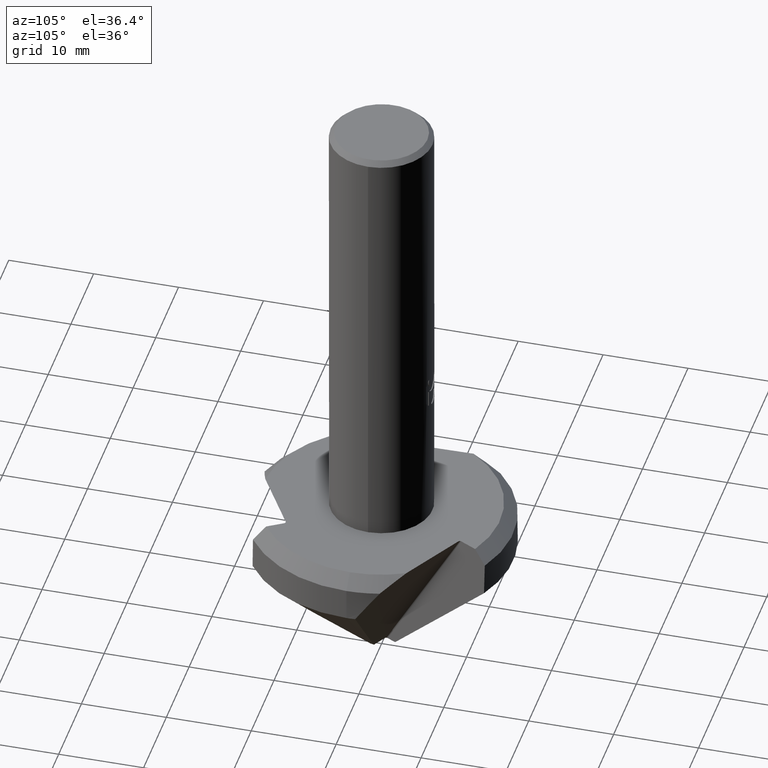
[diagram: clean part render]
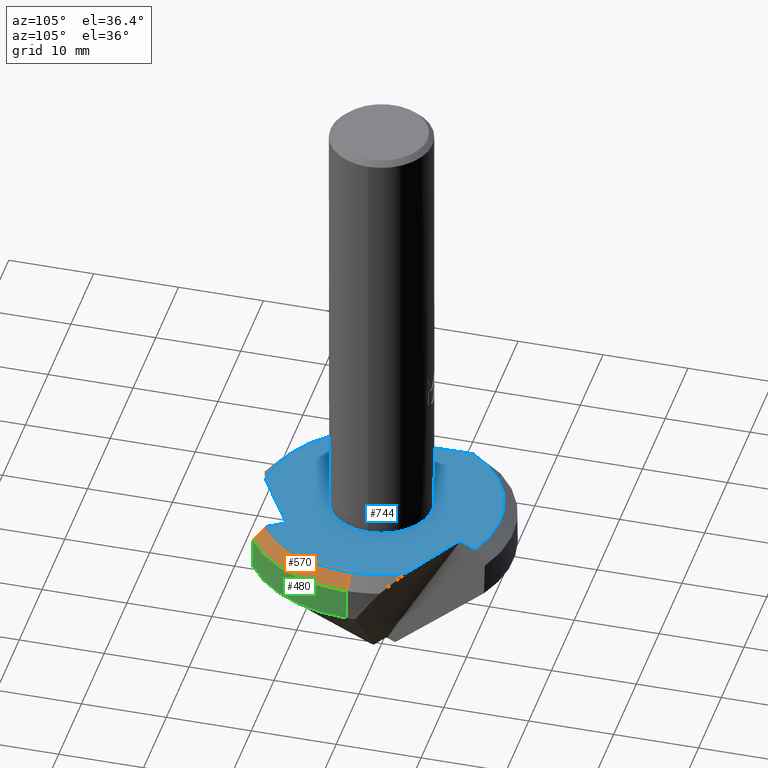
[diagram: same view with three faces highlighted in distinct colors, each labeled with its STEP entity id]
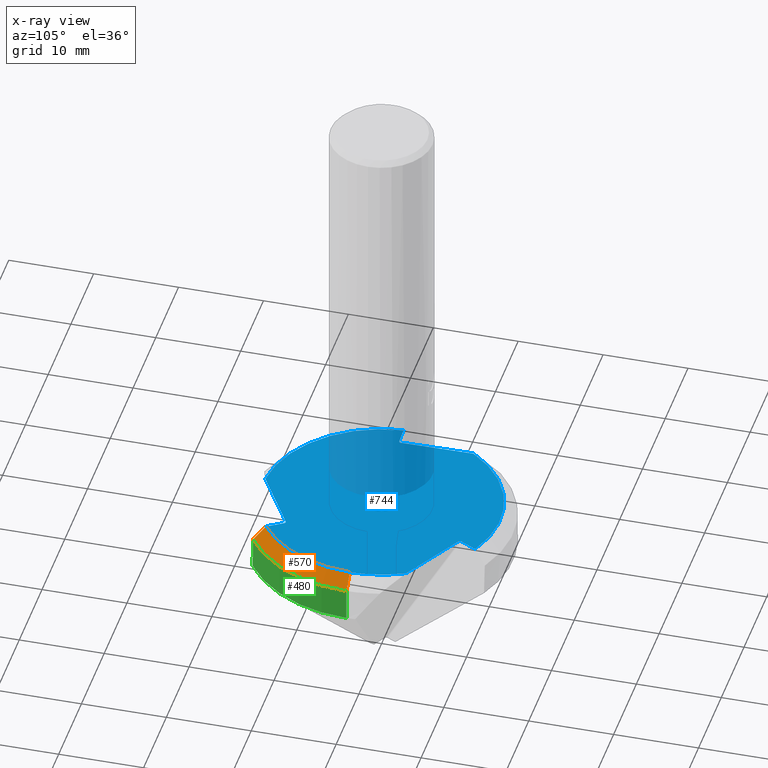
[diagram: x-ray of the same camera — body ghosted, the three highlighted faces saturated]
A machine part, auxiliary view with three faces highlighted in distinct colors.
The next image is the same camera in x-ray (body ghosted, the three faces saturated) — at least one of them is partly hidden behind the body in this view.
Their STEP definitions:

[orange] entity #570 — the highlighted conical surface has half-angle 45 deg.
#406=EDGE_CURVE('',#490,#834,#1163,.T.);
#414=VERTEX_POINT('',#1171);
#472=EDGE_CURVE('',#504,#414,#1235,.T.);
#490=VERTEX_POINT('',#1255);
#504=VERTEX_POINT('',#1270);
#536=EDGE_CURVE('',#504,#490,#1305,.T.);
#570=ADVANCED_FACE('',(#1342),#1343,.T.);
#686=VERTEX_POINT('',#1467);
#834=VERTEX_POINT('',#1630);
#942=EDGE_CURVE('',#686,#414,#1746,.T.);
#1102=EDGE_CURVE('',#834,#686,#1920,.T.);
#1163=CIRCLE('',#1980,13.95);
#1171=CARTESIAN_POINT('',(8.71752649180303,-12.8161902242715,-53.79));
#1235=CIRCLE('',#2161,15.5);
#1255=CARTESIAN_POINT('',(13.95,1.60535037495644E-015,-52.24));
#1270=CARTESIAN_POINT('',(15.5,1.79516435979891E-015,-53.79));
#1305=LINE('',#2298,#2299);
#1342=FACE_OUTER_BOUND('',#2375,.T.);
#1343=CONICAL_SURFACE('',#2376,14.725,0.785398163397449);
#1467=CARTESIAN_POINT('',(7.94509062632238,-11.4785510818885,-52.25));
#1630=CARTESIAN_POINT('',(7.94007302748555,-11.4698622623899,-52.24));
#1746=(B_SPLINE_CURVE(2,(#3247,#3248,#3249),.UNSPECIFIED.,.F.,.F.)B_SPLINE_CURVE_WITH_KNOTS((3,3),(0.0,2.18117758817965),.UNSPECIFIED.)RATIONAL_B_SPLINE_CURVE((1.0,1.00136995271674,1.0))BOUNDED_CURVE()REPRESENTATION_ITEM('')GEOMETRIC_REPRESENTATION_ITEM()CURVE());
#1920=LINE('',#3733,#3734);
#1980=AXIS2_PLACEMENT_3D('',#3827,#3828,#3829);
#2161=AXIS2_PLACEMENT_3D('',#3905,#3906,#3907);
#2298=CARTESIAN_POINT('',(14.725,1.70025736737767E-015,-53.015));
#2299=VECTOR('',#3983,1.0);
#2375=EDGE_LOOP('',(#4024,#4025,#4026,#4027,#4028));
#2376=AXIS2_PLACEMENT_3D('',#4029,#4030,#4031);
#3247=CARTESIAN_POINT('',(7.94509062632236,-11.4785510818885,-52.25));
#3248=CARTESIAN_POINT('',(8.31118110170181,-12.1124986687704,-52.9796147395125));
#3249=CARTESIAN_POINT('',(8.71752649180304,-12.8161902242715,-53.79));
#3733=CARTESIAN_POINT('',(7.94258182690396,-11.4742066721392,-52.245));
#3734=VECTOR('',#4654,1.0);
#3827=CARTESIAN_POINT('',(0.0,0.0,-52.24));
#3828=DIRECTION('',(0.0,0.0,-1.0));
#3829=DIRECTION('',(-1.0,0.0,0.0));
#3905=CARTESIAN_POINT('',(0.0,0.0,-53.79));
#3906=DIRECTION('',(0.0,0.0,-1.0));
#3907=DIRECTION('',(-1.0,0.0,0.0));
#3983=DIRECTION('',(-0.707106781186548,-8.65927457071936E-017,0.707106781186547));
#4024=ORIENTED_EDGE('',*,*,#536,.T.);
#4025=ORIENTED_EDGE('',*,*,#406,.T.);
#4026=ORIENTED_EDGE('',*,*,#1102,.T.);
#4027=ORIENTED_EDGE('',*,*,#942,.T.);
#4028=ORIENTED_EDGE('',*,*,#472,.F.);
#4029=CARTESIAN_POINT('',(0.0,0.0,-53.015));
#4030=DIRECTION('',(-0.0,0.0,-1.0));
#4031=DIRECTION('',(-1.0,0.0,0.0));
#4654=DIRECTION('',(0.35420335764288,-0.61336291330745,-0.705922033948161));

[blue] entity #744 — the highlighted planar face has unit normal (0, 0, 1).
#404=EDGE_CURVE('',#448,#808,#1161,.T.);
#406=EDGE_CURVE('',#490,#834,#1163,.T.);
#410=EDGE_CURVE('',#864,#968,#1167,.T.);
#448=VERTEX_POINT('',#1208);
#466=VERTEX_POINT('',#1229);
#470=VERTEX_POINT('',#1233);
#490=VERTEX_POINT('',#1255);
#516=EDGE_CURVE('',#1084,#596,#1283,.T.);
#544=VERTEX_POINT('',#1313);
#558=EDGE_CURVE('',#824,#1084,#1328,.T.);
#596=VERTEX_POINT('',#1372);
#650=EDGE_CURVE('',#448,#824,#1428,.T.);
#684=EDGE_CURVE('',#466,#768,#1465,.T.);
#724=EDGE_CURVE('',#1020,#834,#1509,.T.);
#744=ADVANCED_FACE('',(#1530,#1531),#1532,.T.);
#768=VERTEX_POINT('',#1560);
#776=VERTEX_POINT('',#1568);
#778=EDGE_CURVE('',#776,#470,#1570,.T.);
#808=VERTEX_POINT('',#1603);
#824=VERTEX_POINT('',#1620);
#834=VERTEX_POINT('',#1630);
#864=VERTEX_POINT('',#1663);
#908=EDGE_CURVE('',#544,#808,#1710,.T.);
#968=VERTEX_POINT('',#1775);
#990=EDGE_CURVE('',#768,#466,#1799,.T.);
#1020=VERTEX_POINT('',#1832);
#1030=EDGE_CURVE('',#864,#490,#1843,.T.);
#1050=EDGE_CURVE('',#470,#1020,#1865,.T.);
#1084=VERTEX_POINT('',#1899);
#1090=EDGE_CURVE('',#776,#596,#1905,.T.);
#1098=EDGE_CURVE('',#968,#544,#1915,.T.);
#1161=CIRCLE('',#1977,13.95);
#1163=CIRCLE('',#1980,13.95);
#1167=LINE('',#1985,#1986);
#1208=CARTESIAN_POINT('',(-11.6420949399372,7.68531882289144,-52.24));
#1229=CARTESIAN_POINT('',(-1.68,0.0,-52.24));
#1233=CARTESIAN_POINT('',(6.49253163065553,-9.54981935710809,-52.24));
#1255=CARTESIAN_POINT('',(13.95,1.60535037495644E-015,-52.24));
#1283=LINE('',#2245,#2246);
#1313=CARTESIAN_POINT('',(4.95442645225031,10.7140925075908,-52.24));
#1328=ELLIPSE('',#2355,0.242634919696946,0.21);
#1372=CARTESIAN_POINT('',(-13.9032286108809,-1.14137381851113,-52.24));
#1428=LINE('',#2537,#2538);
#1465=CIRCLE('',#2619,1.68);
#1509=LINE('',#2700,#2701);
#1530=FACE_BOUND('',#2728,.T.);
#1531=FACE_OUTER_BOUND('',#2729,.T.);
#1532=PLANE('',#2730);
#1560=CARTESIAN_POINT('',(1.68,2.05733867442159E-016,-52.24));
#1568=CARTESIAN_POINT('',(-0.834633866838139,-13.9250093827016,-52.24));
#1570=LINE('',#2852,#2853);
#1603=CARTESIAN_POINT('',(5.96315558339535,12.6112360809011,-52.24));
#1620=CARTESIAN_POINT('',(-11.5166519801358,-0.847787648467637,-52.24));
#1630=CARTESIAN_POINT('',(7.94007302748555,-11.4698622623899,-52.24));
#1663=CARTESIAN_POINT('',(12.4767288067753,6.23969055981013,-52.24));
#1710=LINE('',#3136,#3137);
#1775=CARTESIAN_POINT('',(5.02412034948022,10.3976070055757,-52.24));
#1799=CIRCLE('',#3402,1.68);
#1832=CARTESIAN_POINT('',(6.80146306394497,-9.64770542262575,-52.24));
#1843=CIRCLE('',#3535,13.95);
#1865=ELLIPSE('',#3597,0.242634919696946,0.21);
#1899=CARTESIAN_POINT('',(-11.7558895161953,-1.066387084965,-52.24));
#1905=CIRCLE('',#3716,13.95);
#1915=ELLIPSE('',#3727,0.242634919696946,0.21);
#1977=AXIS2_PLACEMENT_3D('',#3824,#3825,#3826);
#1980=AXIS2_PLACEMENT_3D('',#3827,#3828,#3829);
#1985=CARTESIAN_POINT('',(29.6863200806597,-3.36178562032448,-52.24));
#1986=VECTOR('',#3830,1.0);
#2245=CARTESIAN_POINT('',(-4.23307804742213,-0.803684719734096,-52.24));
#2246=VECTOR('',#3960,1.0);
#2355=AXIS2_PLACEMENT_3D('',#4000,#4001,#4002);
#2537=CARTESIAN_POINT('',(-11.9827711653599,30.859409329008,-52.24));
#2538=VECTOR('',#4120,1.0);
#2619=AXIS2_PLACEMENT_3D('',#4157,#4158,#4159);
#2700=CARTESIAN_POINT('',(-0.354130099482635,1.80363739257752,-52.24));
#2701=VECTOR('',#4197,1.0);
#2728=EDGE_LOOP('',(#4223,#4224));
#2729=EDGE_LOOP('',(#4225,#4226,#4227,#4228,#4229,#4230,#4231,#4232,#4233,#4234,#4235,#4236,#4237));
#2730=AXIS2_PLACEMENT_3D('',#4238,#4239,#4240);
#2852=CARTESIAN_POINT('',(-23.5647989152998,-27.4976237086835,-52.24));
#2853=VECTOR('',#4281,1.0);
#3136=CARTESIAN_POINT('',(-1.27404185309523,-0.999952672843409,-52.24));
#3137=VECTOR('',#4423,1.0);
#3402=AXIS2_PLACEMENT_3D('',#4513,#4514,#4515);
#3535=AXIS2_PLACEMENT_3D('',#4566,#4567,#4568);
#3597=AXIS2_PLACEMENT_3D('',#4593,#4594,#4595);
#3716=AXIS2_PLACEMENT_3D('',#4617,#4618,#4619);
#3727=AXIS2_PLACEMENT_3D('',#4643,#4644,#4645);
#3824=CARTESIAN_POINT('',(0.0,0.0,-52.24));
#3825=DIRECTION('',(0.0,0.0,-1.0));
#3826=DIRECTION('',(-1.0,0.0,0.0));
#3827=CARTESIAN_POINT('',(0.0,0.0,-52.24));
#3828=DIRECTION('',(0.0,0.0,-1.0));
#3829=DIRECTION('',(-1.0,0.0,0.0));
#3830=DIRECTION('',(-0.87328141456,0.487216144010116,0.0));
#3960=DIRECTION('',(-0.999390827019096,-0.0348994967025007,0.0));
#4000=CARTESIAN_POINT('',(-11.7589915386872,-0.856239323347599,-52.24));
#4001=DIRECTION('',(-0.0,0.0,-1.0));
#4002=DIRECTION('',(-0.995464215361802,-0.0951367223216806,0.0));
#4120=DIRECTION('',(0.0146991494333415,-0.999891961666827,0.0));
#4157=CARTESIAN_POINT('',(0.0,0.0,-52.24));
#4158=DIRECTION('',(0.0,0.0,-1.0));
#4159=DIRECTION('',(-1.0,0.0,0.0));
#4197=DIRECTION('',(0.529919264233205,-0.848048096156426,0.0));
#4223=ORIENTED_EDGE('',*,*,#684,.T.);
#4224=ORIENTED_EDGE('',*,*,#990,.T.);
#4225=ORIENTED_EDGE('',*,*,#778,.T.);
#4226=ORIENTED_EDGE('',*,*,#1050,.T.);
#4227=ORIENTED_EDGE('',*,*,#724,.T.);
#4228=ORIENTED_EDGE('',*,*,#406,.F.);
#4229=ORIENTED_EDGE('',*,*,#1030,.F.);
#4230=ORIENTED_EDGE('',*,*,#410,.T.);
#4231=ORIENTED_EDGE('',*,*,#1098,.T.);
#4232=ORIENTED_EDGE('',*,*,#908,.T.);
#4233=ORIENTED_EDGE('',*,*,#404,.F.);
#4234=ORIENTED_EDGE('',*,*,#650,.T.);
#4235=ORIENTED_EDGE('',*,*,#558,.T.);
#4236=ORIENTED_EDGE('',*,*,#516,.T.);
#4237=ORIENTED_EDGE('',*,*,#1090,.F.);
#4238=CARTESIAN_POINT('',(-7.815,0.0,-52.24));
#4239=DIRECTION('',(0.0,0.0,1.0));
#4240=DIRECTION('',(1.0,0.0,0.0));
#4281=DIRECTION('',(0.858582265126658,0.512675817656712,-0.0));
#4423=DIRECTION('',(0.469471562785891,0.882947592858927,-0.0));
#4513=CARTESIAN_POINT('',(0.0,0.0,-52.24));
#4514=DIRECTION('',(0.0,0.0,-1.0));
#4515=DIRECTION('',(-1.0,0.0,0.0));
#4566=CARTESIAN_POINT('',(0.0,0.0,-52.24));
#4567=DIRECTION('',(0.0,0.0,-1.0));
#4568=DIRECTION('',(-1.0,0.0,0.0));
#4593=CARTESIAN_POINT('',(6.62102077508184,-9.7554657337156,-52.24));
#4594=DIRECTION('',(0.0,-0.0,-1.0));
#4595=DIRECTION('',(0.580122926044263,-0.814528937900823,0.0));
#4617=CARTESIAN_POINT('',(0.0,0.0,-52.24));
#4618=DIRECTION('',(0.0,0.0,-1.0));
#4619=DIRECTION('',(-1.0,0.0,0.0));
#4643=CARTESIAN_POINT('',(5.13797076360539,10.6117050570632,-52.24));
#4644=DIRECTION('',(0.0,0.0,-1.0));
#4645=DIRECTION('',(0.415341289317539,0.909665660222504,0.0));

[green] entity #480 — the highlighted cylindrical surface (partial cylindrical patch) has radius 15.5 mm, axis along (-0, -0, 1).
#414=VERTEX_POINT('',#1171);
#432=VERTEX_POINT('',#1191);
#472=EDGE_CURVE('',#504,#414,#1235,.T.);
#480=ADVANCED_FACE('',(#1243),#1244,.T.);
#504=VERTEX_POINT('',#1270);
#522=EDGE_CURVE('',#432,#504,#1289,.T.);
#704=EDGE_CURVE('',#414,#748,#1486,.T.);
#748=VERTEX_POINT('',#1536);
#994=EDGE_CURVE('',#432,#748,#1803,.T.);
#1171=CARTESIAN_POINT('',(8.71752649180303,-12.8161902242715,-53.79));
#1191=CARTESIAN_POINT('',(15.5,2.19840949338151E-015,-57.6));
#1235=CIRCLE('',#2161,15.5);
#1243=FACE_OUTER_BOUND('',#2174,.T.);
#1244=CYLINDRICAL_SURFACE('',#2175,15.5);
#1270=CARTESIAN_POINT('',(15.5,1.79516435979891E-015,-53.79));
#1289=LINE('',#2278,#2279);
#1486=ELLIPSE('',#2655,444.132479391492,15.5);
#1536=CARTESIAN_POINT('',(8.60712944345086,-12.890590473042,-57.6));
#1803=CIRCLE('',#3409,15.5);
#2161=AXIS2_PLACEMENT_3D('',#3905,#3906,#3907);
#2174=EDGE_LOOP('',(#3914,#3915,#3916,#3917));
#2175=AXIS2_PLACEMENT_3D('',#3918,#3919,#3920);
#2278=CARTESIAN_POINT('',(15.5,2.19840949338151E-015,-55.695));
#2279=VECTOR('',#3964,1.0);
#2655=AXIS2_PLACEMENT_3D('',#4175,#4176,#4177);
#3409=AXIS2_PLACEMENT_3D('',#4517,#4518,#4519);
#3905=CARTESIAN_POINT('',(0.0,0.0,-53.79));
#3906=DIRECTION('',(0.0,0.0,-1.0));
#3907=DIRECTION('',(-1.0,0.0,0.0));
#3914=ORIENTED_EDGE('',*,*,#522,.T.);
#3915=ORIENTED_EDGE('',*,*,#472,.T.);
#3916=ORIENTED_EDGE('',*,*,#704,.T.);
#3917=ORIENTED_EDGE('',*,*,#994,.F.);
#3918=CARTESIAN_POINT('',(0.0,0.0,-55.695));
#3919=DIRECTION('',(-0.0,-0.0,1.0));
#3920=DIRECTION('',(-1.0,0.0,0.0));
#3964=DIRECTION('',(-0.0,-0.0,1.0));
#4175=CARTESIAN_POINT('',(0.0,0.0,-71.0100000000001));
#4176=DIRECTION('',(0.84753148816974,0.529596451735374,-0.0348994967025078));
#4177=DIRECTION('',(-0.0295964517353792,-0.0184939156147021,-0.999390827019095));
#4517=CARTESIAN_POINT('',(0.0,0.0,-57.6));
#4518=DIRECTION('',(0.0,0.0,-1.0));
#4519=DIRECTION('',(-1.0,0.0,0.0));